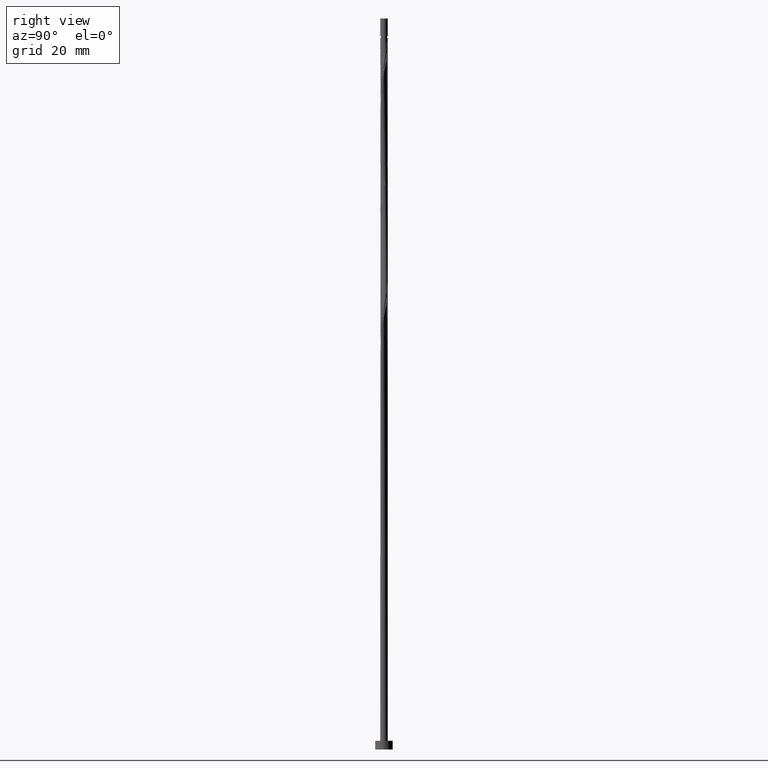
[diagram: clean part render]
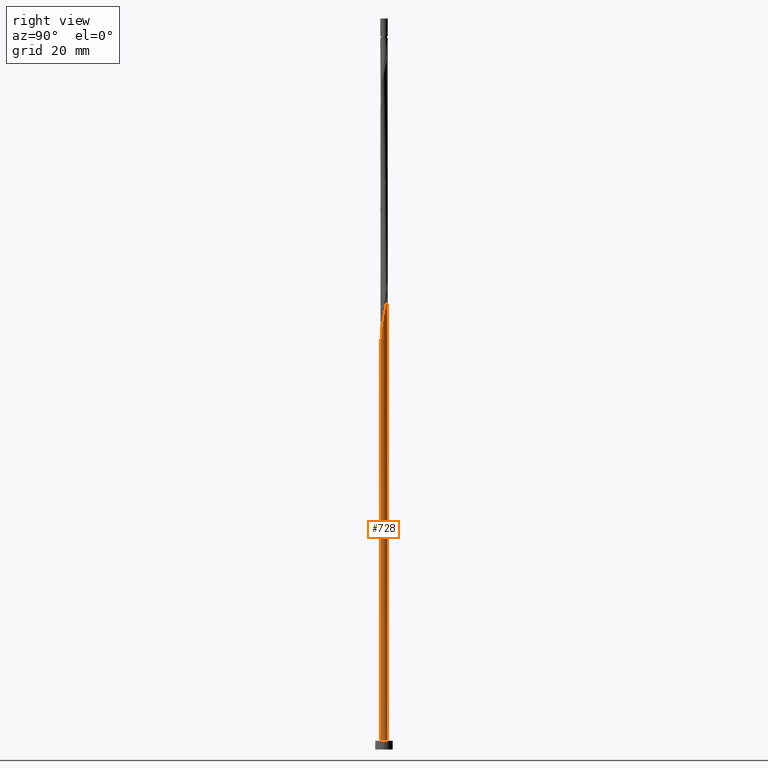
[diagram: same view with one face highlighted and labeled with its STEP entity id]
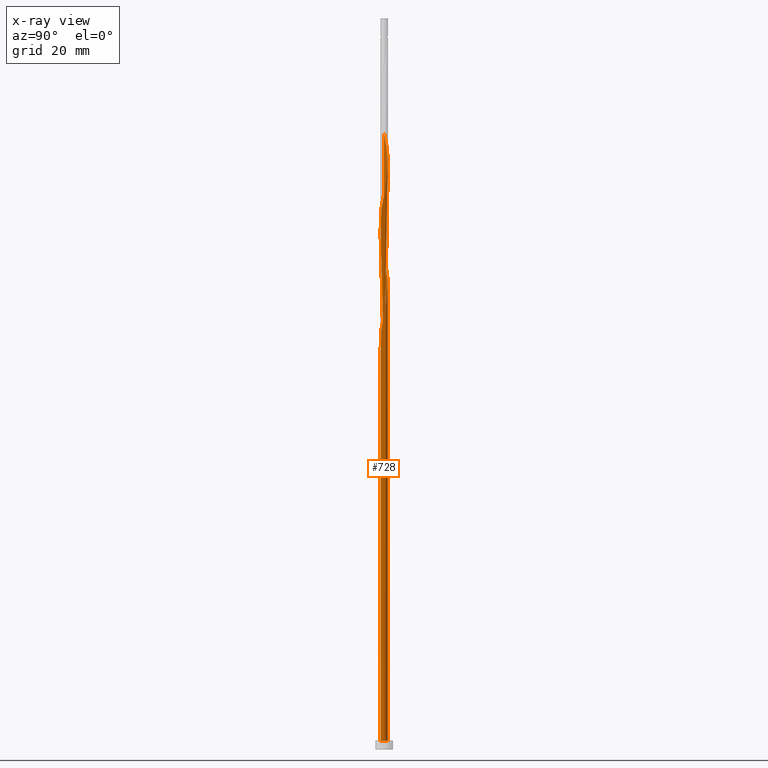
[diagram: x-ray of the same camera — body ghosted, the highlighted face saturated]
A machine part, right view. The second image highlights one B-rep face of the part: STEP entity #728.
The next image is the same camera in x-ray: the body ghosted, the highlighted face saturated — about 0% of this face is hidden behind the body in this view.
In plain terms, the highlighted cylindrical surface (bore or boss wall) has radius 0.65 mm, axis along (-0, -0, -1).
Its self-contained STEP definition (entity closure, byte-faithful):
#2 = ORIENTED_EDGE ( 'NONE', *, *, #383, .F. ) ;
#14 = CARTESIAN_POINT ( 'NONE',  ( -0.2302392553105907791, 0.6165132313137104969, 101.3717835142576433 ) ) ;
#38 = CIRCLE ( 'NONE', #1420, 0.6500000000000000222 ) ;
#45 = CARTESIAN_POINT ( 'NONE',  ( -0.5151910833598807304, -0.4094836098030303906, 86.78845018092431474 ) ) ;
#57 = CARTESIAN_POINT ( 'NONE',  ( 0.02845747833713123398, -0.6574867686862906346, 89.91345018092431474 ) ) ;
#58 = CARTESIAN_POINT ( 'NONE',  ( 0.000000000000000000, 0.000000000000000000, 1.500000000000000000 ) ) ;
#71 = CARTESIAN_POINT ( 'NONE',  ( -0.6500000000000010214, -7.871378961182869428E-16, 65.05741928906124372 ) ) ;
#84 = CARTESIAN_POINT ( 'NONE',  ( 0.2302392553105907236, -0.6165132313137104969, 70.12178351425764333 ) ) ;
#93 = CARTESIAN_POINT ( 'NONE',  ( -0.6341009201601714995, 0.1761099148908769341, 83.66345018092431474 ) ) ;
#99 = DIRECTION ( 'NONE',  ( 0.000000000000000000, -0.000000000000000000, -1.000000000000000000 ) ) ;
#103 = CARTESIAN_POINT ( 'NONE',  ( 0.1293483668238609718, -0.6370000000000007878, 69.60095018092434316 ) ) ;
#108 = CARTESIAN_POINT ( 'NONE',  ( 0.6574867686862906346, 0.02845747833713119929, 74.28845018092431474 ) ) ;
#117 = CARTESIAN_POINT ( 'NONE',  ( -0.4790642326654540040, 0.4393147629896594908, 82.10095018092431474 ) ) ;
#131 = ORIENTED_EDGE ( 'NONE', *, *, #291, .F. ) ;
#151 = ORIENTED_EDGE ( 'NONE', *, *, #1352, .T. ) ;
#156 = EDGE_CURVE ( 'NONE', #596, #399, #1063, .T. ) ;
#159 =( BOUNDED_CURVE ( )  B_SPLINE_CURVE ( 2, ( #1008, #1234, #1001, #924, #794, #1217, #1451, #223, #688, #988, #1240, #332, #103, #84, #203, #1118, #214, #555, #776, #907, #538, #108, #432, #453, #915, #1345, #891, #349, #1319, #808, #321, #786, #1330, #699, #1124, #1015, #117, #671, #1102, #93, #546, #995, #899, #958, #626, #45, #1171, #165, #1065, #1286, #503, #57, #283, #174, #1385, #288, #1392, #1276, #516, #620, #962, #1291, #1031, #1133, #953, #395, #812, #746, #404, #1025, #276, #851, #1180, #14, #1055, #366, #1248, #815, #739, #1253, #387, #586, #930 ),
 .UNSPECIFIED., .F., .T. ) 
 B_SPLINE_CURVE_WITH_KNOTS ( ( 3, 2, 2, 2, 2, 2, 2, 2, 2, 2, 2, 2, 2, 2, 2, 2, 2, 2, 2, 2, 2, 2, 2, 2, 2, 2, 2, 2, 2, 2, 2, 2, 2, 2, 2, 2, 2, 2, 2, 2, 2, 3 ),
 ( 0.05453220231385524919, 0.06250000000000000000, 0.07499999999999995559, 0.08750000000000002220, 0.09999999999999997780, 0.1125000000000000444, 0.1250000000000000000, 0.1374999999999999556, 0.1500000000000000222, 0.1624999999999999778, 0.1750000000000000444, 0.1875000000000000000, 0.1999999999999999556, 0.2125000000000000222, 0.2249999999999999778, 0.2375000000000000444, 0.2500000000000000000, 0.2624999999999999556, 0.2750000000000000222, 0.2874999999999999778, 0.3000000000000000444, 0.3125000000000000000, 0.3249999999999999556, 0.3375000000000000222, 0.3499999999999999778, 0.3625000000000000444, 0.3750000000000000000, 0.3874999999999999556, 0.4000000000000000222, 0.4124999999999999778, 0.4250000000000000444, 0.4375000000000000000, 0.4499999999999999556, 0.4625000000000000222, 0.4749999999999999778, 0.4875000000000000444, 0.5000000000000000000, 0.5124999999999999556, 0.5250000000000000222, 0.5374999999999999778, 0.5500000000000000444, 0.5545322023138551382 ),
 .UNSPECIFIED. ) 
 CURVE ( )  GEOMETRIC_REPRESENTATION_ITEM ( )  RATIONAL_B_SPLINE_CURVE ( ( 0.9039174447099529441, 0.9019565955404822422, 0.9090909090909307100, 0.8978984914501465520, 0.9090909090909307100, 0.8978984914501465520, 0.9090909090909307100, 0.8978984914501465520, 0.9090909090909307100, 0.8978984914501465520, 0.9090909090909307100, 0.8978984914501465520, 0.9090909090909307100, 0.8978984914501465520, 0.9090909090909307100, 0.8978984914501465520, 0.9090909090909307100, 0.8978984914501465520, 0.9090909090909307100, 0.8978984914501465520, 0.9090909090909307100, 0.8978984914501465520, 0.9090909090909307100, 0.8978984914501465520, 0.9090909090909307100, 0.8978984914501465520, 0.9090909090909307100, 0.8978984914501465520, 0.9090909090909307100, 0.8978984914501465520, 0.9090909090909307100, 0.8978984914501465520, 0.9090909090909307100, 0.8978984914501465520, 0.9090909090909307100, 0.8978984914501465520, 0.9090909090909307100, 0.8978984914501465520, 0.9090909090909307100, 0.8978984914501465520, 0.9090909090909307100, 0.8978984914501465520, 0.9090909090909307100, 0.8978984914501465520, 0.9090909090909307100, 0.8978984914501465520, 0.9090909090909307100, 0.8978984914501465520, 0.9090909090909307100, 0.8978984914501465520, 0.9090909090909307100, 0.8978984914501465520, 0.9090909090909307100, 0.8978984914501465520, 0.9090909090909307100, 0.8978984914501465520, 0.9090909090909307100, 0.8978984914501465520, 0.9090909090909307100, 0.8978984914501465520, 0.9090909090909307100, 0.8978984914501465520, 0.9090909090909307100, 0.8978984914501465520, 0.9090909090909307100, 0.8978984914501465520, 0.9090909090909307100, 0.8978984914501465520, 0.9090909090909307100, 0.8978984914501465520, 0.9090909090909307100, 0.8978984914501465520, 0.9090909090909307100, 0.8978984914501465520, 0.9090909090909307100, 0.8978984914501465520, 0.9090909090909307100, 0.8978984914501465520, 0.9090909090909307100, 0.8978984914501465520, 0.9090909090909307100, 0.9050328050005950198, 0.9039174447099528331 ) ) 
 REPRESENTATION_ITEM ( '' )  );
#165 = CARTESIAN_POINT ( 'NONE',  ( -0.3634384426194381956, -0.5486448555278774508, 87.83011684759098614 ) ) ;
#174 = CARTESIAN_POINT ( 'NONE',  ( 0.2302392553105907236, -0.6165132313137104969, 90.95511684759100035 ) ) ;
#176 = AXIS2_PLACEMENT_3D ( 'NONE', #58, #650, #528 ) ;
#182 = AXIS2_PLACEMENT_3D ( 'NONE', #1331, #684, #1321 ) ;
#188 = CARTESIAN_POINT ( 'NONE',  ( -0.6500000000000007994, 8.096275502930974740E-16, 63.72781440612071435 ) ) ;
#195 = CARTESIAN_POINT ( 'NONE',  ( 0.1293483668238612772, 0.6370000000000010099, 59.18428351425765754 ) ) ;
#196 = CARTESIAN_POINT ( 'NONE',  ( -0.6500000000000005773, 0.03703292934018075772, 63.53830331691344213 ) ) ;
#203 = CARTESIAN_POINT ( 'NONE',  ( 0.3198614325568104877, -0.5658521573367958357, 70.64261684759098614 ) ) ;
#205 = FACE_OUTER_BOUND ( 'NONE', #1415, .T. ) ;
#208 = DIRECTION ( 'NONE',  ( -1.000000000000000000, 0.000000000000000000, 0.000000000000000000 ) ) ;
#212 = ORIENTED_EDGE ( 'NONE', *, *, #156, .T. ) ;
#214 = CARTESIAN_POINT ( 'NONE',  ( 0.4790642326654539485, -0.4393147629896594908, 71.68428351425765754 ) ) ;
#223 = CARTESIAN_POINT ( 'NONE',  ( -0.3634384426194381956, -0.5486448555278774508, 66.99678351425765754 ) ) ;
#247 = CARTESIAN_POINT ( 'NONE',  ( -0.3634384426194384732, 0.5486448555278780059, 61.78845018092432895 ) ) ;
#276 = CARTESIAN_POINT ( 'NONE',  ( 0.07382621827687295413, 0.6457938444232312891, 99.80928351425765754 ) ) ;
#281 = CARTESIAN_POINT ( 'NONE',  ( -0.1293483668238608886, 0.6370000000000007878, 59.18428351425765754 ) ) ;
#283 = CARTESIAN_POINT ( 'NONE',  ( 0.1293483668238609718, -0.6370000000000007878, 90.43428351425767175 ) ) ;
#288 = CARTESIAN_POINT ( 'NONE',  ( 0.4094836098030303906, -0.5151910833598808415, 91.99678351425765754 ) ) ;
#291 = EDGE_CURVE ( 'NONE', #709, #596, #437, .T. ) ;
#321 = CARTESIAN_POINT ( 'NONE',  ( 0.07382621827687295413, 0.6457938444232312891, 78.97595018092431474 ) ) ;
#327 =( BOUNDED_CURVE ( )  B_SPLINE_CURVE ( 2, ( #281, #745, #1064, #960, #533, #871, #520, #1302, #861, #196, #188 ),
 .UNSPECIFIED., .F., .T. ) 
 B_SPLINE_CURVE_WITH_KNOTS ( ( 3, 2, 2, 2, 2, 3 ),
 ( 0.000000000000000000, 0.01249999999999995559, 0.02500000000000002220, 0.03749999999999997780, 0.05000000000000004441, 0.05453220231385524919 ),
 .UNSPECIFIED. ) 
 CURVE ( )  GEOMETRIC_REPRESENTATION_ITEM ( )  RATIONAL_B_SPLINE_CURVE ( ( 0.9090909090909307100, 0.8978984914501465520, 0.9090909090909307100, 0.8978984914501465520, 0.9090909090909307100, 0.8978984914501465520, 0.9090909090909307100, 0.8978984914501465520, 0.9090909090909307100, 0.9050328050005950198, 0.9039174447099529441 ) ) 
 REPRESENTATION_ITEM ( '' )  );
#331 = VECTOR ( 'NONE', #665, 1000.000000000000000 ) ;
#332 = CARTESIAN_POINT ( 'NONE',  ( 0.02845747833713123398, -0.6574867686862906346, 69.08011684759100035 ) ) ;
#343 = LINE ( 'NONE', #1346, #1006 ) ;
#347 = ORIENTED_EDGE ( 'NONE', *, *, #291, .T. ) ;
#349 = CARTESIAN_POINT ( 'NONE',  ( 0.3634384426194381956, 0.5486448555278773398, 77.41345018092431474 ) ) ;
#366 = CARTESIAN_POINT ( 'NONE',  ( -0.4094836098030303906, 0.5151910833598807304, 102.4134501809243432 ) ) ;
#383 = EDGE_CURVE ( 'NONE', #658, #669, #833, .T. ) ;
#387 = CARTESIAN_POINT ( 'NONE',  ( -0.6457938444232309561, 0.07382621827687280147, 105.0176168475909861 ) ) ;
#395 = CARTESIAN_POINT ( 'NONE',  ( 0.5151910833598809525, 0.4094836098030303906, 97.20511684759100035 ) ) ;
#399 = VERTEX_POINT ( 'NONE', #723 ) ;
#404 = CARTESIAN_POINT ( 'NONE',  ( 0.2697741787551576897, 0.5913728878440247527, 98.76761684759097193 ) ) ;
#432 = CARTESIAN_POINT ( 'NONE',  ( 0.6370000000000007878, 0.1293483668238609441, 74.80928351425765754 ) ) ;
#437 = LINE ( 'NONE', #707, #331 ) ;
#453 = CARTESIAN_POINT ( 'NONE',  ( 0.6165132313137104969, 0.2302392553105906681, 75.33011684759100035 ) ) ;
#477 = CARTESIAN_POINT ( 'NONE',  ( -0.07382621827687282923, 0.6457938444232314001, 60.22595018092430763 ) ) ;
#481 = CARTESIAN_POINT ( 'NONE',  ( -0.6165132313137109410, 0.2302392553105909179, 63.87178351425765044 ) ) ;
#486 = CARTESIAN_POINT ( 'NONE',  ( -0.6500000000000010214, -7.871378961182869428E-16, 65.05741928906124372 ) ) ;
#496 = CARTESIAN_POINT ( 'NONE',  ( 0.000000000000000000, 0.000000000000000000, 1.500000000000000000 ) ) ;
#503 = CARTESIAN_POINT ( 'NONE',  ( -0.07382621827687284310, -0.6457938444232309561, 89.39261684759097193 ) ) ;
#516 = CARTESIAN_POINT ( 'NONE',  ( 0.5913728878440247527, -0.2697741787551576897, 93.55928351425768597 ) ) ;
#517 = EDGE_CURVE ( 'NONE', #799, #709, #327, .T. ) ;
#520 = CARTESIAN_POINT ( 'NONE',  ( -0.5913728878440248637, 0.2697741787551575232, 62.30928351425766465 ) ) ;
#528 = DIRECTION ( 'NONE',  ( 1.000000000000000000, 0.000000000000000000, 0.000000000000000000 ) ) ;
#533 = CARTESIAN_POINT ( 'NONE',  ( -0.4790642326654540040, 0.4393147629896594908, 61.26761684759098614 ) ) ;
#538 = CARTESIAN_POINT ( 'NONE',  ( 0.6457938444232309561, -0.07382621827687287086, 73.76761684759097193 ) ) ;
#546 = CARTESIAN_POINT ( 'NONE',  ( -0.6457938444232309561, 0.07382621827687280147, 84.18428351425765754 ) ) ;
#555 = CARTESIAN_POINT ( 'NONE',  ( 0.5486448555278774508, -0.3634384426194381956, 72.20511684759095772 ) ) ;
#584 = CARTESIAN_POINT ( 'NONE',  ( -0.5658521573367959467, 0.3198614325568108208, 63.35095018092432184 ) ) ;
#586 = CARTESIAN_POINT ( 'NONE',  ( -0.6500000000000005773, 0.03703292934018166671, 105.2049699835801135 ) ) ;
#596 = VERTEX_POINT ( 'NONE', #990 ) ;
#617 = CARTESIAN_POINT ( 'NONE',  ( -0.6500000000000007994, 8.096275502930974740E-16, 63.72781440612071435 ) ) ;
#620 = CARTESIAN_POINT ( 'NONE',  ( 0.6341009201601714995, -0.1761099148908769618, 94.08011684759097193 ) ) ;
#626 = CARTESIAN_POINT ( 'NONE',  ( -0.5658521573367958357, -0.3198614325568105432, 86.26761684759098614 ) ) ;
#650 = DIRECTION ( 'NONE',  ( 0.000000000000000000, 0.000000000000000000, 1.000000000000000000 ) ) ;
#658 = VERTEX_POINT ( 'NONE', #71 ) ;
#665 = DIRECTION ( 'NONE',  ( -0.000000000000000000, -0.000000000000000000, -1.000000000000000000 ) ) ;
#669 = VERTEX_POINT ( 'NONE', #195 ) ;
#671 = CARTESIAN_POINT ( 'NONE',  ( -0.5486448555278775618, 0.3634384426194381956, 82.62178351425762912 ) ) ;
#684 = DIRECTION ( 'NONE',  ( -0.000000000000000000, -0.000000000000000000, -1.000000000000000000 ) ) ;
#688 = CARTESIAN_POINT ( 'NONE',  ( -0.2697741787551576897, -0.5913728878440247527, 67.51761684759098614 ) ) ;
#699 = CARTESIAN_POINT ( 'NONE',  ( -0.2302392553105907791, 0.6165132313137104969, 80.53845018092432895 ) ) ;
#707 = CARTESIAN_POINT ( 'NONE',  ( -0.6500000000000000222, 0.000000000000000000, 125.0000000000000000 ) ) ;
#709 = VERTEX_POINT ( 'NONE', #617 ) ;
#723 = CARTESIAN_POINT ( 'NONE',  ( 0.6500000000000000222, 0.000000000000000000, 1.500000000000000000 ) ) ;
#728 = ADVANCED_FACE ( 'NONE', ( #205 ), #1091, .T. ) ;
#737 = CARTESIAN_POINT ( 'NONE',  ( -0.6370000000000010099, 0.1293483668238611106, 64.39261684759098614 ) ) ;
#739 = CARTESIAN_POINT ( 'NONE',  ( -0.5913728878440248637, 0.2697741787551575232, 103.9759501809243147 ) ) ;
#745 = CARTESIAN_POINT ( 'NONE',  ( -0.2302392553105907791, 0.6165132313137104969, 59.70511684759098614 ) ) ;
#746 = CARTESIAN_POINT ( 'NONE',  ( 0.3634384426194381956, 0.5486448555278773398, 98.24678351425765754 ) ) ;
#776 = CARTESIAN_POINT ( 'NONE',  ( 0.5913728878440247527, -0.2697741787551576897, 72.72595018092432895 ) ) ;
#786 = CARTESIAN_POINT ( 'NONE',  ( -0.02845747833713117153, 0.6574867686862906346, 79.49678351425762912 ) ) ;
#794 = CARTESIAN_POINT ( 'NONE',  ( -0.5658521573367958357, -0.3198614325568105432, 65.43428351425765754 ) ) ;
#799 = VERTEX_POINT ( 'NONE', #909 ) ;
#808 = CARTESIAN_POINT ( 'NONE',  ( 0.1761099148908770173, 0.6341009201601714995, 78.45511684759098614 ) ) ;
#812 = CARTESIAN_POINT ( 'NONE',  ( 0.4393147629896594908, 0.4790642326654539485, 97.72595018092432895 ) ) ;
#815 = CARTESIAN_POINT ( 'NONE',  ( -0.5486448555278775618, 0.3634384426194381956, 103.4551168475909861 ) ) ;
#833 =( BOUNDED_CURVE ( )  B_SPLINE_CURVE ( 2, ( #486, #1377, #737, #481, #584, #1369, #944, #247, #1154, #838, #477, #1150, #834 ),
 .UNSPECIFIED., .F., .T. ) 
 B_SPLINE_CURVE_WITH_KNOTS ( ( 3, 2, 2, 2, 2, 2, 3 ),
 ( 0.9295322023138554712, 0.9375000000000000000, 0.9499999999999999556, 0.9625000000000000222, 0.9749999999999999778, 0.9875000000000000444, 1.000000000000000000 ),
 .UNSPECIFIED. ) 
 CURVE ( )  GEOMETRIC_REPRESENTATION_ITEM ( )  RATIONAL_B_SPLINE_CURVE ( ( 0.9039174447099550536, 0.9019565955404846846, 0.9090909090909331525, 0.8978984914501488834, 0.9090909090909331525, 0.8978984914501488834, 0.9090909090909331525, 0.8978984914501488834, 0.9090909090909331525, 0.8978984914501488834, 0.9090909090909331525, 0.8978984914501488834, 0.9090909090909331525 ) ) 
 REPRESENTATION_ITEM ( '' )  );
#834 = CARTESIAN_POINT ( 'NONE',  ( 0.1293483668238612772, 0.6370000000000010099, 59.18428351425766465 ) ) ;
#838 = CARTESIAN_POINT ( 'NONE',  ( -0.1761099148908770451, 0.6341009201601719436, 60.74678351425766465 ) ) ;
#851 = CARTESIAN_POINT ( 'NONE',  ( -0.02845747833713117153, 0.6574867686862906346, 100.3301168475910004 ) ) ;
#861 = CARTESIAN_POINT ( 'NONE',  ( -0.6457938444232309561, 0.07382621827687280147, 63.35095018092433605 ) ) ;
#865 = EDGE_CURVE ( 'NONE', #920, #658, #343, .T. ) ;
#871 = CARTESIAN_POINT ( 'NONE',  ( -0.5486448555278775618, 0.3634384426194381956, 61.78845018092432184 ) ) ;
#891 = CARTESIAN_POINT ( 'NONE',  ( 0.4393147629896594908, 0.4790642326654539485, 76.89261684759100035 ) ) ;
#893 = CARTESIAN_POINT ( 'NONE',  ( -0.6500000000000006883, 2.398896445312880911E-16, 105.3944810727873715 ) ) ;
#899 = CARTESIAN_POINT ( 'NONE',  ( -0.6370000000000007878, -0.1293483668238610274, 85.22595018092434316 ) ) ;
#900 = DIRECTION ( 'NONE',  ( -0.000000000000000000, -0.000000000000000000, -1.000000000000000000 ) ) ;
#907 = CARTESIAN_POINT ( 'NONE',  ( 0.6341009201601714995, -0.1761099148908769618, 73.24678351425764333 ) ) ;
#909 = CARTESIAN_POINT ( 'NONE',  ( -0.1293483668238608886, 0.6370000000000007878, 59.18428351425765754 ) ) ;
#915 = CARTESIAN_POINT ( 'NONE',  ( 0.5658521573367958357, 0.3198614325568104877, 75.85095018092435737 ) ) ;
#920 = VERTEX_POINT ( 'NONE', #893 ) ;
#924 = CARTESIAN_POINT ( 'NONE',  ( -0.6165132313137104969, -0.2302392553105907791, 64.91345018092431474 ) ) ;
#930 = CARTESIAN_POINT ( 'NONE',  ( -0.6500000000000005773, 2.398896445312880911E-16, 105.3944810727873715 ) ) ;
#944 = CARTESIAN_POINT ( 'NONE',  ( -0.4393147629896597683, 0.4790642326654542815, 62.30928351425765754 ) ) ;
#948 = DIRECTION ( 'NONE',  ( 0.000000000000000000, 0.000000000000000000, 1.000000000000000000 ) ) ;
#953 = CARTESIAN_POINT ( 'NONE',  ( 0.5658521573367958357, 0.3198614325568104877, 96.68428351425762912 ) ) ;
#958 = CARTESIAN_POINT ( 'NONE',  ( -0.6165132313137104969, -0.2302392553105907791, 85.74678351425767175 ) ) ;
#960 = CARTESIAN_POINT ( 'NONE',  ( -0.4094836098030303906, 0.5151910833598807304, 60.74678351425765044 ) ) ;
#962 = CARTESIAN_POINT ( 'NONE',  ( 0.6457938444232309561, -0.07382621827687287086, 94.60095018092430053 ) ) ;
#988 = CARTESIAN_POINT ( 'NONE',  ( -0.1761099148908769618, -0.6341009201601714995, 68.03845018092432895 ) ) ;
#989 = ORIENTED_EDGE ( 'NONE', *, *, #517, .F. ) ;
#990 = CARTESIAN_POINT ( 'NONE',  ( -0.6500000000000000222, 0.000000000000000000, 1.500000000000000000 ) ) ;
#995 = CARTESIAN_POINT ( 'NONE',  ( -0.6574867686862907457, -0.02845747833713132072, 84.70511684759097193 ) ) ;
#1001 = CARTESIAN_POINT ( 'NONE',  ( -0.6370000000000007878, -0.1293483668238610274, 64.39261684759100035 ) ) ;
#1006 = VECTOR ( 'NONE', #900, 1000.000000000000000 ) ;
#1008 = CARTESIAN_POINT ( 'NONE',  ( -0.6500000000000007994, 8.096275502930974740E-16, 63.72781440612071435 ) ) ;
#1015 = CARTESIAN_POINT ( 'NONE',  ( -0.4094836098030303906, 0.5151910833598807304, 81.58011684759097193 ) ) ;
#1025 = CARTESIAN_POINT ( 'NONE',  ( 0.1761099148908770173, 0.6341009201601714995, 99.28845018092430053 ) ) ;
#1031 = CARTESIAN_POINT ( 'NONE',  ( 0.6370000000000007878, 0.1293483668238609441, 95.64261684759098614 ) ) ;
#1055 = CARTESIAN_POINT ( 'NONE',  ( -0.3198614325568105987, 0.5658521573367957247, 101.8926168475909861 ) ) ;
#1063 = CIRCLE ( 'NONE', #176, 0.6500000000000000222 ) ;
#1064 = CARTESIAN_POINT ( 'NONE',  ( -0.3198614325568105987, 0.5658521573367957247, 60.22595018092432895 ) ) ;
#1065 = CARTESIAN_POINT ( 'NONE',  ( -0.2697741787551576897, -0.5913728878440247527, 88.35095018092432895 ) ) ;
#1091 = CYLINDRICAL_SURFACE ( 'NONE', #182, 0.6500000000000000222 ) ;
#1102 = CARTESIAN_POINT ( 'NONE',  ( -0.5913728878440248637, 0.2697741787551575232, 83.14261684759098614 ) ) ;
#1118 = CARTESIAN_POINT ( 'NONE',  ( 0.4094836098030303906, -0.5151910833598808415, 71.16345018092431474 ) ) ;
#1122 = AXIS2_PLACEMENT_3D ( 'NONE', #496, #948, #1378 ) ;
#1124 = CARTESIAN_POINT ( 'NONE',  ( -0.3198614325568105987, 0.5658521573367957247, 81.05928351425762912 ) ) ;
#1133 = CARTESIAN_POINT ( 'NONE',  ( 0.6165132313137104969, 0.2302392553105906681, 96.16345018092431474 ) ) ;
#1150 = CARTESIAN_POINT ( 'NONE',  ( 0.02845747833713134153, 0.6574867686862910787, 59.70511684759097903 ) ) ;
#1153 = EDGE_CURVE ( 'NONE', #709, #920, #159, .T. ) ;
#1154 = CARTESIAN_POINT ( 'NONE',  ( -0.2697741787551576342, 0.5913728878440248637, 61.26761684759097193 ) ) ;
#1158 = ORIENTED_EDGE ( 'NONE', *, *, #1153, .F. ) ;
#1171 = CARTESIAN_POINT ( 'NONE',  ( -0.4393147629896594908, -0.4790642326654539485, 87.30928351425765754 ) ) ;
#1180 = CARTESIAN_POINT ( 'NONE',  ( -0.1293483668238608886, 0.6370000000000007878, 100.8509501809243432 ) ) ;
#1217 = CARTESIAN_POINT ( 'NONE',  ( -0.5151910833598807304, -0.4094836098030303906, 65.95511684759098614 ) ) ;
#1234 = CARTESIAN_POINT ( 'NONE',  ( -0.6500000000000005773, -0.06532745799184949687, 64.06211898152855611 ) ) ;
#1240 = CARTESIAN_POINT ( 'NONE',  ( -0.07382621827687284310, -0.6457938444232309561, 68.55928351425767175 ) ) ;
#1248 = CARTESIAN_POINT ( 'NONE',  ( -0.4790642326654540040, 0.4393147629896594908, 102.9342835142576860 ) ) ;
#1253 = CARTESIAN_POINT ( 'NONE',  ( -0.6341009201601714995, 0.1761099148908769341, 104.4967835142576291 ) ) ;
#1265 = CIRCLE ( 'NONE', #1122, 0.6500000000000000222 ) ;
#1276 = CARTESIAN_POINT ( 'NONE',  ( 0.5486448555278774508, -0.3634384426194381956, 93.03845018092432895 ) ) ;
#1286 = CARTESIAN_POINT ( 'NONE',  ( -0.1761099148908769618, -0.6341009201601714995, 88.87178351425761491 ) ) ;
#1291 = CARTESIAN_POINT ( 'NONE',  ( 0.6574867686862906346, 0.02845747833713119929, 95.12178351425764333 ) ) ;
#1302 = CARTESIAN_POINT ( 'NONE',  ( -0.6341009201601714995, 0.1761099148908769341, 62.83011684759097193 ) ) ;
#1319 = CARTESIAN_POINT ( 'NONE',  ( 0.2697741787551576897, 0.5913728878440247527, 77.93428351425767175 ) ) ;
#1321 = DIRECTION ( 'NONE',  ( -1.000000000000000000, 0.000000000000000000, 0.000000000000000000 ) ) ;
#1330 = CARTESIAN_POINT ( 'NONE',  ( -0.1293483668238608886, 0.6370000000000007878, 80.01761684759098614 ) ) ;
#1331 = CARTESIAN_POINT ( 'NONE',  ( 0.000000000000000000, 0.000000000000000000, 125.0000000000000000 ) ) ;
#1345 = CARTESIAN_POINT ( 'NONE',  ( 0.5151910833598809525, 0.4094836098030303906, 76.37178351425765754 ) ) ;
#1346 = CARTESIAN_POINT ( 'NONE',  ( -0.6500000000000000222, 0.000000000000000000, 125.0000000000000000 ) ) ;
#1352 = EDGE_CURVE ( 'NONE', #399, #596, #1265, .T. ) ;
#1357 = ORIENTED_EDGE ( 'NONE', *, *, #1427, .T. ) ;
#1369 = CARTESIAN_POINT ( 'NONE',  ( -0.5151910833598811745, 0.4094836098030307237, 62.83011684759098614 ) ) ;
#1377 = CARTESIAN_POINT ( 'NONE',  ( -0.6500000000000006883, 0.06532745799185137037, 64.72311471365338775 ) ) ;
#1378 = DIRECTION ( 'NONE',  ( 1.000000000000000000, 0.000000000000000000, 0.000000000000000000 ) ) ;
#1385 = CARTESIAN_POINT ( 'NONE',  ( 0.3198614325568104877, -0.5658521573367958357, 91.47595018092428631 ) ) ;
#1392 = CARTESIAN_POINT ( 'NONE',  ( 0.4790642326654539485, -0.4393147629896594908, 92.51761684759100035 ) ) ;
#1415 = EDGE_LOOP ( 'NONE', ( #1422, #1158, #347, #212, #151, #131, #989, #1357, #2 ) ) ;
#1420 = AXIS2_PLACEMENT_3D ( 'NONE', #1421, #99, #208 ) ;
#1421 = CARTESIAN_POINT ( 'NONE',  ( 0.000000000000000000, 0.000000000000000000, 59.18428351425767175 ) ) ;
#1422 = ORIENTED_EDGE ( 'NONE', *, *, #865, .F. ) ;
#1427 = EDGE_CURVE ( 'NONE', #799, #669, #38, .T. ) ;
#1451 = CARTESIAN_POINT ( 'NONE',  ( -0.4393147629896594908, -0.4790642326654539485, 66.47595018092432895 ) ) ;